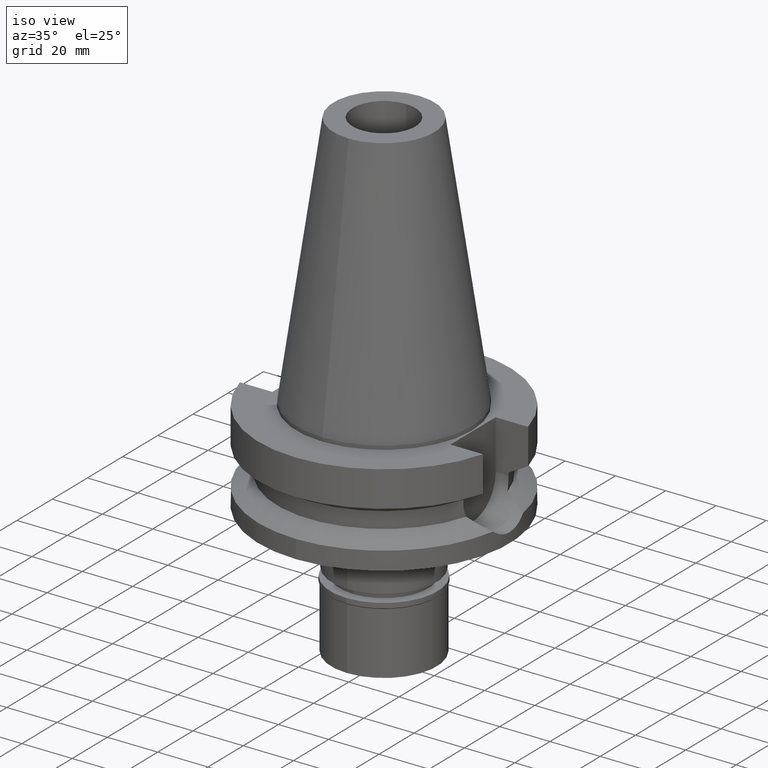
[diagram: clean part render]
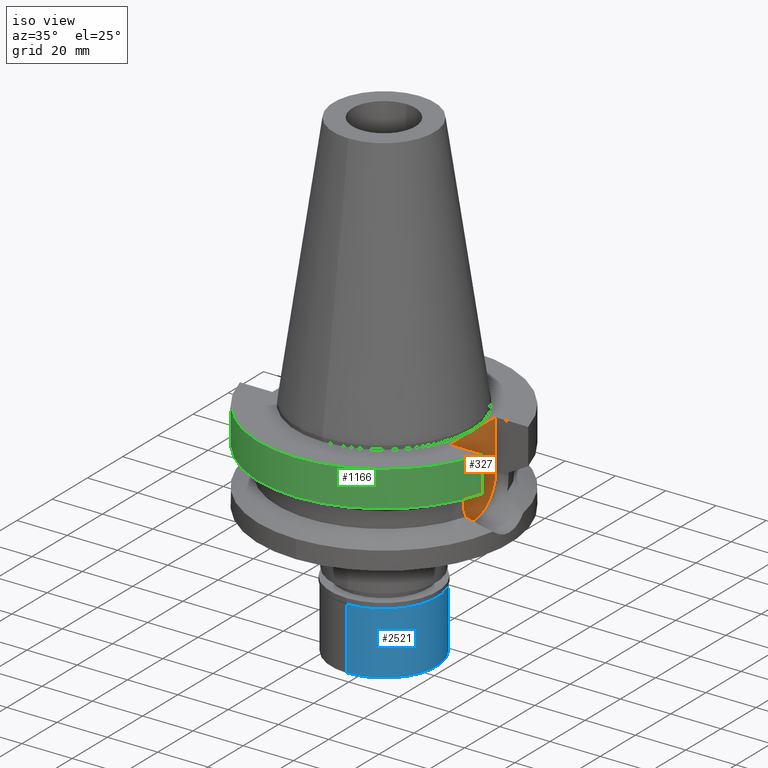
[diagram: same view with three faces highlighted in distinct colors, each labeled with its STEP entity id]
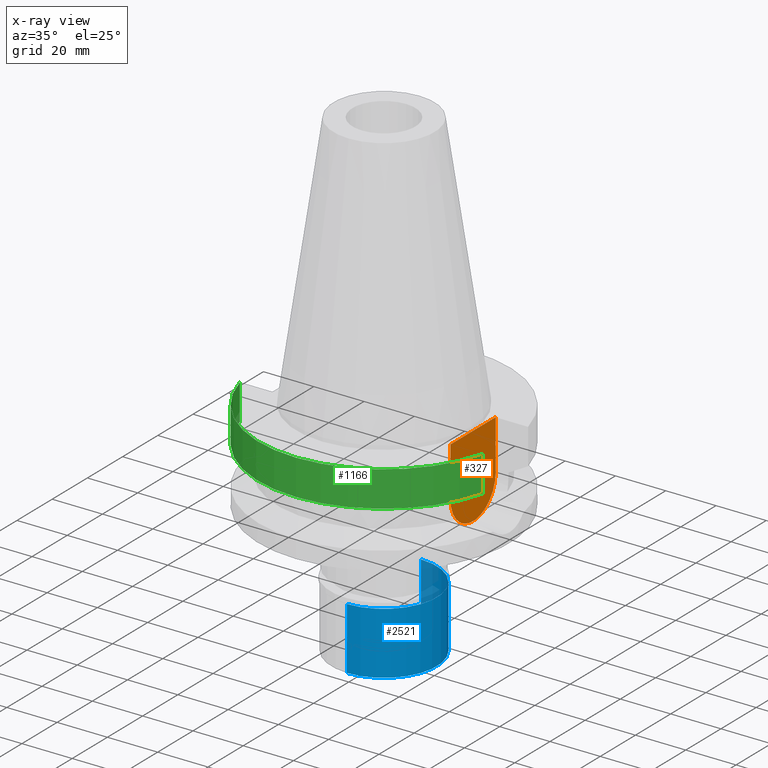
[diagram: x-ray of the same camera — body ghosted, the three highlighted faces saturated]
A machine part, iso view with three faces highlighted in distinct colors.
The next image is the same camera in x-ray (body ghosted, the three faces saturated) — at least one of them is partly hidden behind the body in this view.
Their STEP definitions:

[orange] entity #327 — the highlighted planar face has unit normal (1, 0, 0).
#103 = VERTEX_POINT ( 'NONE', #3029 ) ;
#124 = EDGE_CURVE ( 'NONE', #103, #2945, #1912, .T. ) ;
#258 = VECTOR ( 'NONE', #708, 1000.000000000000000 ) ;
#276 = DIRECTION ( 'NONE',  ( 0.0000000000000000000, 1.000000000000000000, 0.0000000000000000000 ) ) ;
#290 = CARTESIAN_POINT ( 'NONE',  ( 35.39999999999999858, 0.0000000000000000000, -21.14999999999999858 ) ) ;
#327 = ADVANCED_FACE ( 'NONE', ( #822 ), #2688, .T. ) ;
#373 = VECTOR ( 'NONE', #1502, 1000.000000000000000 ) ;
#534 = DIRECTION ( 'NONE',  ( 1.000000000000000000, 0.0000000000000000000, 0.0000000000000000000 ) ) ;
#708 = DIRECTION ( 'NONE',  ( 0.0000000000000000000, 0.0000000000000000000, 1.000000000000000000 ) ) ;
#781 = AXIS2_PLACEMENT_3D ( 'NONE', #290, #2007, #276 ) ;
#799 = LINE ( 'NONE', #2663, #373 ) ;
#822 = FACE_OUTER_BOUND ( 'NONE', #1450, .T. ) ;
#876 = CARTESIAN_POINT ( 'NONE',  ( 35.39999999999999858, 12.84999999999999964, -1.500000000000000000 ) ) ;
#1031 = CARTESIAN_POINT ( 'NONE',  ( 35.39999999999999858, 12.84999999999999964, -21.14999999999999858 ) ) ;
#1274 = EDGE_CURVE ( 'NONE', #2459, #1698, #799, .T. ) ;
#1378 = AXIS2_PLACEMENT_3D ( 'NONE', #2653, #534, #2176 ) ;
#1450 = EDGE_LOOP ( 'NONE', ( #1874, #1670, #1760, #1718 ) ) ;
#1502 = DIRECTION ( 'NONE',  ( 0.0000000000000000000, 0.0000000000000000000, -1.000000000000000000 ) ) ;
#1670 = ORIENTED_EDGE ( 'NONE', *, *, #2648, .F. ) ;
#1698 = VERTEX_POINT ( 'NONE', #1031 ) ;
#1718 = ORIENTED_EDGE ( 'NONE', *, *, #2274, .T. ) ;
#1751 = DIRECTION ( 'NONE',  ( 0.0000000000000000000, -1.000000000000000000, 0.0000000000000000000 ) ) ;
#1760 = ORIENTED_EDGE ( 'NONE', *, *, #1274, .F. ) ;
#1874 = ORIENTED_EDGE ( 'NONE', *, *, #124, .F. ) ;
#1912 = LINE ( 'NONE', #2861, #258 ) ;
#1969 = CIRCLE ( 'NONE', #781, 12.84999999999999964 ) ;
#2007 = DIRECTION ( 'NONE',  ( -1.000000000000000000, 0.0000000000000000000, 0.0000000000000000000 ) ) ;
#2176 = DIRECTION ( 'NONE',  ( 0.0000000000000000000, 1.000000000000000000, 0.0000000000000000000 ) ) ;
#2274 = EDGE_CURVE ( 'NONE', #2459, #2945, #2990, .T. ) ;
#2382 = CARTESIAN_POINT ( 'NONE',  ( 35.39999999999999858, 12.84999999999999964, -1.500000000000000000 ) ) ;
#2459 = VERTEX_POINT ( 'NONE', #2382 ) ;
#2508 = VECTOR ( 'NONE', #1751, 1000.000000000000000 ) ;
#2648 = EDGE_CURVE ( 'NONE', #1698, #103, #1969, .T. ) ;
#2653 = CARTESIAN_POINT ( 'NONE',  ( 35.39999999999999858, 0.0000000000000000000, 0.0000000000000000000 ) ) ;
#2663 = CARTESIAN_POINT ( 'NONE',  ( 35.39999999999999858, 12.84999999999999964, -1.500000000000000000 ) ) ;
#2688 = PLANE ( 'NONE',  #1378 ) ;
#2738 = CARTESIAN_POINT ( 'NONE',  ( 35.39999999999999858, -12.84999999999999964, -1.500000000000000000 ) ) ;
#2861 = CARTESIAN_POINT ( 'NONE',  ( 35.39999999999999858, -12.84999999999999964, -21.14999999999999858 ) ) ;
#2945 = VERTEX_POINT ( 'NONE', #2738 ) ;
#2990 = LINE ( 'NONE', #876, #2508 ) ;
#3029 = CARTESIAN_POINT ( 'NONE',  ( 35.39999999999999858, -12.84999999999999964, -21.14999999999999858 ) ) ;

[blue] entity #2521 — the highlighted cylindrical surface (partial cylindrical patch) has radius 21 mm, axis along (0, 0, -1).
#40 = CARTESIAN_POINT ( 'NONE',  ( 0.0000000000000000000, -21.00000000000000000, -27.09999999999999787 ) ) ;
#126 = AXIS2_PLACEMENT_3D ( 'NONE', #2028, #2041, #2539 ) ;
#139 = ORIENTED_EDGE ( 'NONE', *, *, #307, .T. ) ;
#246 = ORIENTED_EDGE ( 'NONE', *, *, #1850, .T. ) ;
#307 = EDGE_CURVE ( 'NONE', #1125, #2019, #1627, .T. ) ;
#314 = VECTOR ( 'NONE', #2822, 1000.000000000000000 ) ;
#403 = EDGE_CURVE ( 'NONE', #1125, #723, #1191, .T. ) ;
#412 = CARTESIAN_POINT ( 'NONE',  ( 0.0000000000000000000, 21.00000000000000000, -2.299999999999999822 ) ) ;
#468 = DIRECTION ( 'NONE',  ( 0.0000000000000000000, 0.0000000000000000000, -1.000000000000000000 ) ) ;
#501 = CYLINDRICAL_SURFACE ( 'NONE', #1441, 21.00000000000000000 ) ;
#633 = CIRCLE ( 'NONE', #126, 21.00000000000000000 ) ;
#723 = VERTEX_POINT ( 'NONE', #2913 ) ;
#844 = EDGE_CURVE ( 'NONE', #1436, #723, #633, .T. ) ;
#1014 = DIRECTION ( 'NONE',  ( 0.0000000000000000000, 1.000000000000000000, 0.0000000000000000000 ) ) ;
#1064 = DIRECTION ( 'NONE',  ( 0.0000000000000000000, 0.0000000000000000000, -1.000000000000000000 ) ) ;
#1125 = VERTEX_POINT ( 'NONE', #412 ) ;
#1191 = LINE ( 'NONE', #2835, #314 ) ;
#1303 = LINE ( 'NONE', #2246, #2164 ) ;
#1406 = FACE_OUTER_BOUND ( 'NONE', #2696, .T. ) ;
#1436 = VERTEX_POINT ( 'NONE', #40 ) ;
#1441 = AXIS2_PLACEMENT_3D ( 'NONE', #2823, #468, #1871 ) ;
#1627 = CIRCLE ( 'NONE', #1873, 21.00000000000000000 ) ;
#1843 = CARTESIAN_POINT ( 'NONE',  ( 0.0000000000000000000, -21.00000000000000000, -2.299999999999999822 ) ) ;
#1850 = EDGE_CURVE ( 'NONE', #2019, #1436, #1303, .T. ) ;
#1871 = DIRECTION ( 'NONE',  ( 0.0000000000000000000, -1.000000000000000000, 0.0000000000000000000 ) ) ;
#1873 = AXIS2_PLACEMENT_3D ( 'NONE', #2458, #2671, #1014 ) ;
#2019 = VERTEX_POINT ( 'NONE', #1843 ) ;
#2028 = CARTESIAN_POINT ( 'NONE',  ( 0.0000000000000000000, 0.0000000000000000000, -27.09999999999999787 ) ) ;
#2041 = DIRECTION ( 'NONE',  ( 0.0000000000000000000, 0.0000000000000000000, 1.000000000000000000 ) ) ;
#2164 = VECTOR ( 'NONE', #1064, 1000.000000000000000 ) ;
#2246 = CARTESIAN_POINT ( 'NONE',  ( 0.0000000000000000000, -21.00000000000000000, -2.299999999999999822 ) ) ;
#2287 = ORIENTED_EDGE ( 'NONE', *, *, #403, .F. ) ;
#2458 = CARTESIAN_POINT ( 'NONE',  ( 0.0000000000000000000, 0.0000000000000000000, -2.299999999999999822 ) ) ;
#2521 = ADVANCED_FACE ( 'NONE', ( #1406 ), #501, .T. ) ;
#2539 = DIRECTION ( 'NONE',  ( 0.0000000000000000000, -1.000000000000000000, 0.0000000000000000000 ) ) ;
#2579 = ORIENTED_EDGE ( 'NONE', *, *, #844, .T. ) ;
#2671 = DIRECTION ( 'NONE',  ( 0.0000000000000000000, 0.0000000000000000000, -1.000000000000000000 ) ) ;
#2696 = EDGE_LOOP ( 'NONE', ( #139, #246, #2579, #2287 ) ) ;
#2822 = DIRECTION ( 'NONE',  ( 0.0000000000000000000, 0.0000000000000000000, -1.000000000000000000 ) ) ;
#2823 = CARTESIAN_POINT ( 'NONE',  ( 0.0000000000000000000, 0.0000000000000000000, 0.0000000000000000000 ) ) ;
#2835 = CARTESIAN_POINT ( 'NONE',  ( 0.0000000000000000000, 21.00000000000000000, -2.299999999999999822 ) ) ;
#2913 = CARTESIAN_POINT ( 'NONE',  ( 0.0000000000000000000, 21.00000000000000000, -27.09999999999999787 ) ) ;

[green] entity #1166 — the highlighted cylindrical surface (partial cylindrical patch) has radius 50 mm, axis along (0, 0, -1).
#130 = ORIENTED_EDGE ( 'NONE', *, *, #366, .F. ) ;
#163 = DIRECTION ( 'NONE',  ( -7.193731436762720661E-08, 2.705097123475894651E-07, 0.9999999999999609201 ) ) ;
#171 = ORIENTED_EDGE ( 'NONE', *, *, #787, .T. ) ;
#206 = FACE_OUTER_BOUND ( 'NONE', #2624, .T. ) ;
#267 = VERTEX_POINT ( 'NONE', #316 ) ;
#268 = CARTESIAN_POINT ( 'NONE',  ( 0.0000000000000000000, 1.006319759053999930E-14, -15.66269223573000069 ) ) ;
#309 = VECTOR ( 'NONE', #163, 999.9999999999998863 ) ;
#316 = CARTESIAN_POINT ( 'NONE',  ( 48.32057015392000210, -12.84999999999999964, -1.500000000000000000 ) ) ;
#362 = VECTOR ( 'NONE', #2473, 1000.000000000000114 ) ;
#366 = EDGE_CURVE ( 'NONE', #267, #1755, #2702, .T. ) ;
#375 = DIRECTION ( 'NONE',  ( 0.0000000000000000000, -1.000000000000000000, 0.0000000000000000000 ) ) ;
#623 = VERTEX_POINT ( 'NONE', #1233 ) ;
#695 = CYLINDRICAL_SURFACE ( 'NONE', #2187, 50.00000000000000000 ) ;
#787 = EDGE_CURVE ( 'NONE', #623, #1755, #1192, .T. ) ;
#1052 = EDGE_CURVE ( 'NONE', #267, #1880, #2070, .T. ) ;
#1166 = ADVANCED_FACE ( 'NONE', ( #206 ), #695, .T. ) ;
#1192 = CIRCLE ( 'NONE', #2810, 50.00000000000000000 ) ;
#1233 = CARTESIAN_POINT ( 'NONE',  ( -48.32056913510000129, -12.85000383113999867, -15.66265791674999797 ) ) ;
#1251 = DIRECTION ( 'NONE',  ( 0.0000000000000000000, 0.0000000000000000000, 1.000000000000000000 ) ) ;
#1414 = ORIENTED_EDGE ( 'NONE', *, *, #1052, .T. ) ;
#1577 = CARTESIAN_POINT ( 'NONE',  ( 0.0000000000000000000, 2.582045311321999724E-14, -1.500000000000000000 ) ) ;
#1653 = DIRECTION ( 'NONE',  ( 0.0000000000000000000, 0.0000000000000000000, -1.000000000000000000 ) ) ;
#1740 = CARTESIAN_POINT ( 'NONE',  ( 48.32057015392000210, -12.84999999999999964, -1.500000000000000000 ) ) ;
#1755 = VERTEX_POINT ( 'NONE', #2674 ) ;
#1794 = LINE ( 'NONE', #2048, #309 ) ;
#1880 = VERTEX_POINT ( 'NONE', #3012 ) ;
#2048 = CARTESIAN_POINT ( 'NONE',  ( -48.32056913510000129, -12.85000383113999867, -15.66265791674999797 ) ) ;
#2070 = CIRCLE ( 'NONE', #2662, 50.00000000000000000 ) ;
#2187 = AXIS2_PLACEMENT_3D ( 'NONE', #2299, #1653, #2581 ) ;
#2230 = ORIENTED_EDGE ( 'NONE', *, *, #2902, .F. ) ;
#2245 = DIRECTION ( 'NONE',  ( 0.0000000000000000000, -1.000000000000000000, 0.0000000000000000000 ) ) ;
#2299 = CARTESIAN_POINT ( 'NONE',  ( 0.0000000000000000000, 2.582045311321999724E-14, 110.8399999999999892 ) ) ;
#2473 = DIRECTION ( 'NONE',  ( -7.183861538722719190E-08, -2.701385685754894334E-07, -0.9999999999999609201 ) ) ;
#2506 = DIRECTION ( 'NONE',  ( 0.0000000000000000000, 0.0000000000000000000, -1.000000000000000000 ) ) ;
#2581 = DIRECTION ( 'NONE',  ( 0.0000000000000000000, -1.000000000000000000, 0.0000000000000000000 ) ) ;
#2624 = EDGE_LOOP ( 'NONE', ( #2230, #171, #130, #1414 ) ) ;
#2662 = AXIS2_PLACEMENT_3D ( 'NONE', #1577, #2506, #375 ) ;
#2674 = CARTESIAN_POINT ( 'NONE',  ( 48.32057015392000210, -12.84999999999999964, -15.66269223573000069 ) ) ;
#2702 = LINE ( 'NONE', #1740, #362 ) ;
#2810 = AXIS2_PLACEMENT_3D ( 'NONE', #268, #1251, #2245 ) ;
#2902 = EDGE_CURVE ( 'NONE', #623, #1880, #1794, .T. ) ;
#3012 = CARTESIAN_POINT ( 'NONE',  ( -48.32057015392000210, -12.84999999999999964, -1.500000000000000000 ) ) ;